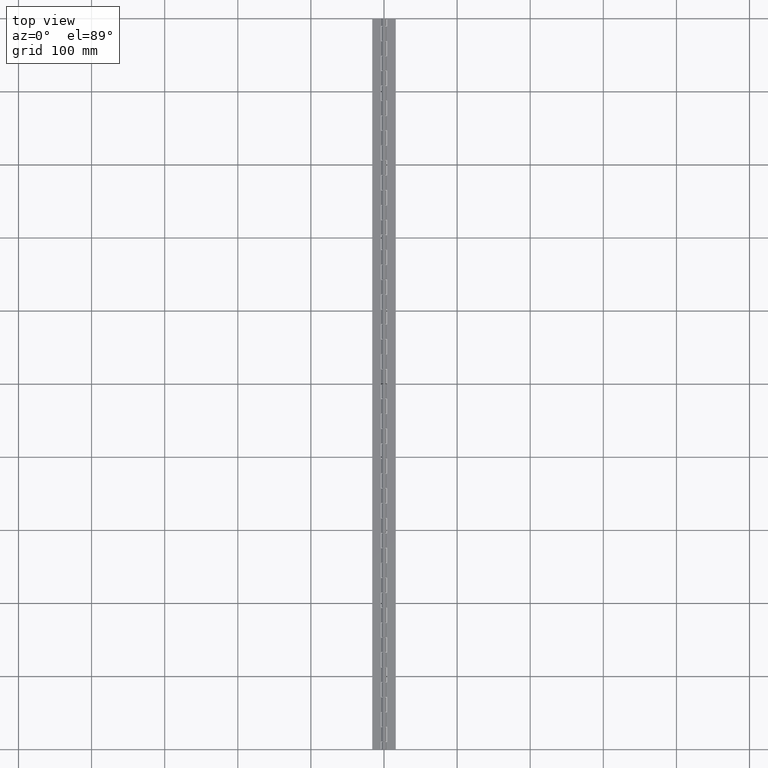
[diagram: clean part render]
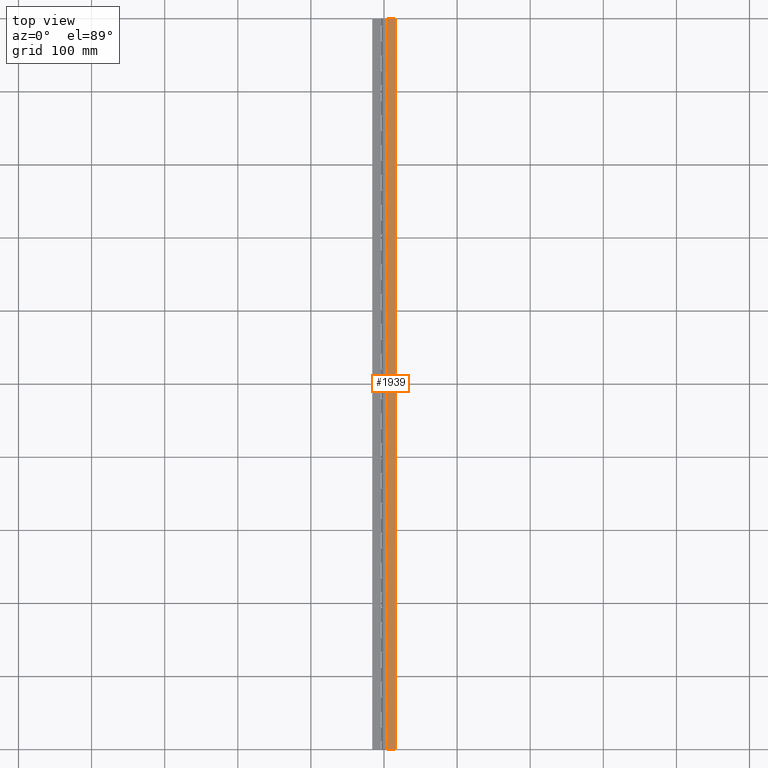
[diagram: same view with one face highlighted and labeled with its STEP entity id]
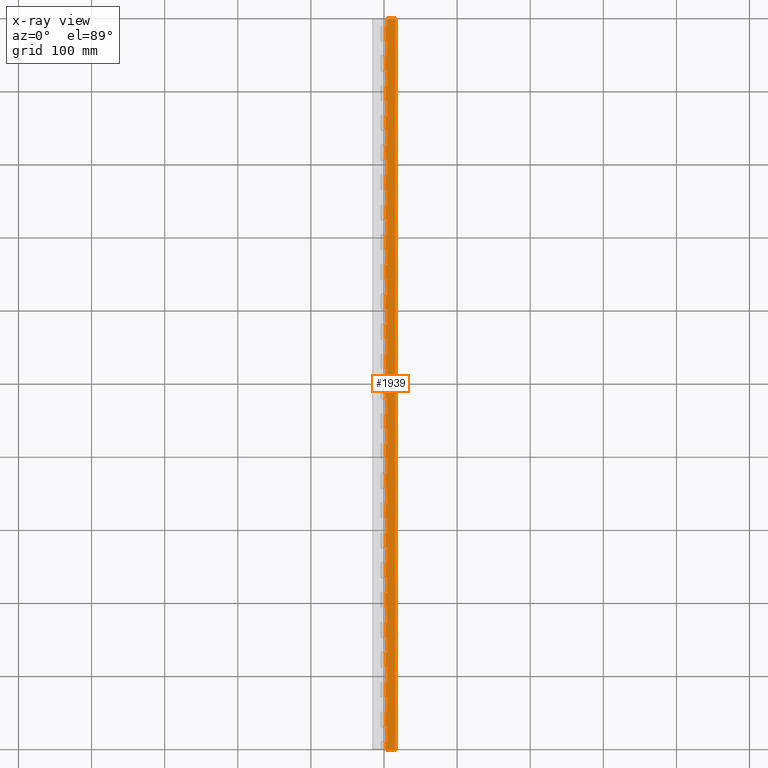
[diagram: x-ray of the same camera — body ghosted, the highlighted face saturated]
A machine part, top view. The second image highlights one B-rep face of the part: STEP entity #1939.
The next image is the same camera in x-ray: the body ghosted, the highlighted face saturated — about 0% of this face is hidden behind the body in this view.
In plain terms, the highlighted planar face has unit normal (0, 0, -1).
Its self-contained STEP definition (entity closure, byte-faithful):
#1308 = EDGE_CURVE ( 'NONE', #1309, #1327, #4344, .T. ) ;
#1309 = VERTEX_POINT ( 'NONE', #4336 ) ;
#1327 = VERTEX_POINT ( 'NONE', #4364 ) ;
#1438 = VERTEX_POINT ( 'NONE', #4599 ) ;
#1440 = EDGE_CURVE ( 'NONE', #1441, #1438, #4598, .T. ) ;
#1441 = VERTEX_POINT ( 'NONE', #4594 ) ;
#1451 = VERTEX_POINT ( 'NONE', #4639 ) ;
#1453 = EDGE_CURVE ( 'NONE', #1454, #1451, #4638, .T. ) ;
#1454 = VERTEX_POINT ( 'NONE', #4634 ) ;
#1483 = EDGE_CURVE ( 'NONE', #1558, #1492, #4702, .T. ) ;
#1492 = VERTEX_POINT ( 'NONE', #4739 ) ;
#1495 = VERTEX_POINT ( 'NONE', #4734 ) ;
#1497 = ORIENTED_EDGE ( 'NONE', *, *, #2075, .T. ) ;
#1498 = VERTEX_POINT ( 'NONE', #4727 ) ;
#1506 = VERTEX_POINT ( 'NONE', #4713 ) ;
#1508 = EDGE_CURVE ( 'NONE', #1509, #1506, #4778, .T. ) ;
#1509 = VERTEX_POINT ( 'NONE', #4774 ) ;
#1516 = VERTEX_POINT ( 'NONE', #4757 ) ;
#1519 = VERTEX_POINT ( 'NONE', #4755 ) ;
#1521 = EDGE_CURVE ( 'NONE', #1522, #1519, #4754, .T. ) ;
#1522 = VERTEX_POINT ( 'NONE', #4750 ) ;
#1533 = VERTEX_POINT ( 'NONE', #4791 ) ;
#1536 = VERTEX_POINT ( 'NONE', #4784 ) ;
#1538 = EDGE_CURVE ( 'NONE', #1539, #1536, #4783, .T. ) ;
#1539 = VERTEX_POINT ( 'NONE', #4779 ) ;
#1549 = VERTEX_POINT ( 'NONE', #4825 ) ;
#1552 = VERTEX_POINT ( 'NONE', #4819 ) ;
#1554 = EDGE_CURVE ( 'NONE', #1552, #1549, #4818, .T. ) ;
#1558 = VERTEX_POINT ( 'NONE', #4813 ) ;
#1569 = VERTEX_POINT ( 'NONE', #4847 ) ;
#1571 = EDGE_CURVE ( 'NONE', #1572, #1569, #4846, .T. ) ;
#1572 = VERTEX_POINT ( 'NONE', #4842 ) ;
#1573 = EDGE_CURVE ( 'NONE', #1574, #1516, #4906, .T. ) ;
#1574 = VERTEX_POINT ( 'NONE', #4902 ) ;
#1585 = VERTEX_POINT ( 'NONE', #4879 ) ;
#1587 = EDGE_CURVE ( 'NONE', #1644, #1585, #4878, .T. ) ;
#1589 = EDGE_CURVE ( 'NONE', #1590, #1533, #4935, .T. ) ;
#1590 = VERTEX_POINT ( 'NONE', #4931 ) ;
#1605 = VERTEX_POINT ( 'NONE', #4965 ) ;
#1607 = EDGE_CURVE ( 'NONE', #1608, #1605, #4964, .T. ) ;
#1608 = VERTEX_POINT ( 'NONE', #4960 ) ;
#1622 = VERTEX_POINT ( 'NONE', #4995 ) ;
#1624 = EDGE_CURVE ( 'NONE', #1625, #1622, #4994, .T. ) ;
#1625 = VERTEX_POINT ( 'NONE', #4990 ) ;
#1639 = VERTEX_POINT ( 'NONE', #5023 ) ;
#1641 = EDGE_CURVE ( 'NONE', #1642, #1639, #5022, .T. ) ;
#1642 = VERTEX_POINT ( 'NONE', #5018 ) ;
#1644 = VERTEX_POINT ( 'NONE', #5017 ) ;
#1654 = EDGE_CURVE ( 'NONE', #1680, #1655, #5009, .T. ) ;
#1655 = VERTEX_POINT ( 'NONE', #5005 ) ;
#1665 = VERTEX_POINT ( 'NONE', #5053 ) ;
#1680 = VERTEX_POINT ( 'NONE', #5084 ) ;
#1712 = EDGE_CURVE ( 'NONE', #1655, #1665, #5161, .T. ) ;
#1724 = EDGE_CURVE ( 'NONE', #1605, #1665, #5141, .T. ) ;
#1872 = VERTEX_POINT ( 'NONE', #5406 ) ;
#1920 = ORIENTED_EDGE ( 'NONE', *, *, #1508, .T. ) ;
#1921 = ORIENTED_EDGE ( 'NONE', *, *, #1922, .T. ) ;
#1922 = EDGE_CURVE ( 'NONE', #1506, #1498, #5455, .T. ) ;
#1923 = ORIENTED_EDGE ( 'NONE', *, *, #1924, .T. ) ;
#1924 = EDGE_CURVE ( 'NONE', #1949, #1925, #5451, .T. ) ;
#1925 = VERTEX_POINT ( 'NONE', #5509 ) ;
#1926 = ORIENTED_EDGE ( 'NONE', *, *, #1927, .T. ) ;
#1927 = EDGE_CURVE ( 'NONE', #1925, #1872, #5508, .T. ) ;
#1928 = ORIENTED_EDGE ( 'NONE', *, *, #1962, .T. ) ;
#1929 = ORIENTED_EDGE ( 'NONE', *, *, #1930, .T. ) ;
#1930 = EDGE_CURVE ( 'NONE', #1960, #1931, #5504, .T. ) ;
#1931 = VERTEX_POINT ( 'NONE', #5500 ) ;
#1932 = ORIENTED_EDGE ( 'NONE', *, *, #1933, .T. ) ;
#1933 = EDGE_CURVE ( 'NONE', #1931, #1934, #5499, .T. ) ;
#1934 = VERTEX_POINT ( 'NONE', #5495 ) ;
#1935 = ORIENTED_EDGE ( 'NONE', *, *, #2002, .T. ) ;
#1939 = ADVANCED_FACE ( 'NONE', ( #5489 ), #5488, .F. ) ;
#1940 = EDGE_LOOP ( 'NONE', ( #1941, #1944, #1946, #1947, #1923, #1926, #1928, #1929, #1932, #1935, #2003, #2004, #2007, #2010, #1920, #1921, #1989, #1992, #1994, #1995, #1998, #2001, #1976, #1977, #1980, #1983, #1985, #1986, #2059, #1965, #1967, #1968, #1972, #2045, #2047, #2048, #2051, #2054, #2056, #2057, #2032, #2035, #2037, #2038, #2041, #2044, #2019, #2020, #2023, #2026, #2028, #2029, #2104, #2107, #2109, #2012, #2015, #2089, #2091, #2092, #2096, #2099, #2101, #1497, #2077, #2080, #2082, #2083, #2086, #2063, #2065, #2066, #2069, #2072, #2074, #2148, #2151, #2154, #2156, #2157, #2060, #2135, #2137, #2138, #2141, #2144, #2146, #2147, #2123, #2126, #2128, #2129, #2133, #2196, #2111, #2112, #2115, #2118, #2120, #2182, #2183, #2184 ) ) ;
#1941 = ORIENTED_EDGE ( 'NONE', *, *, #1942, .T. ) ;
#1942 = EDGE_CURVE ( 'NONE', #1680, #1943, #5483, .T. ) ;
#1943 = VERTEX_POINT ( 'NONE', #5479 ) ;
#1944 = ORIENTED_EDGE ( 'NONE', *, *, #1945, .T. ) ;
#1945 = EDGE_CURVE ( 'NONE', #1943, #1309, #5541, .T. ) ;
#1946 = ORIENTED_EDGE ( 'NONE', *, *, #1308, .T. ) ;
#1947 = ORIENTED_EDGE ( 'NONE', *, *, #1948, .T. ) ;
#1948 = EDGE_CURVE ( 'NONE', #1327, #1949, #5536, .T. ) ;
#1949 = VERTEX_POINT ( 'NONE', #5532 ) ;
#1960 = VERTEX_POINT ( 'NONE', #5514 ) ;
#1962 = EDGE_CURVE ( 'NONE', #1872, #1960, #5573, .T. ) ;
#1963 = EDGE_CURVE ( 'NONE', #1988, #1964, #5569, .T. ) ;
#1964 = VERTEX_POINT ( 'NONE', #5565 ) ;
#1965 = ORIENTED_EDGE ( 'NONE', *, *, #1966, .T. ) ;
#1966 = EDGE_CURVE ( 'NONE', #1964, #1558, #5564, .T. ) ;
#1967 = ORIENTED_EDGE ( 'NONE', *, *, #1483, .T. ) ;
#1968 = ORIENTED_EDGE ( 'NONE', *, *, #1969, .T. ) ;
#1969 = EDGE_CURVE ( 'NONE', #1492, #1970, #5560, .T. ) ;
#1970 = VERTEX_POINT ( 'NONE', #5556 ) ;
#1972 = ORIENTED_EDGE ( 'NONE', *, *, #1973, .T. ) ;
#1973 = EDGE_CURVE ( 'NONE', #1970, #1974, #5555, .T. ) ;
#1974 = VERTEX_POINT ( 'NONE', #5551 ) ;
#1975 = EDGE_CURVE ( 'NONE', #2000, #2430, #5548, .T. ) ;
#1976 = ORIENTED_EDGE ( 'NONE', *, *, #2358, .T. ) ;
#1977 = ORIENTED_EDGE ( 'NONE', *, *, #1978, .T. ) ;
#1978 = EDGE_CURVE ( 'NONE', #2427, #1979, #5544, .T. ) ;
#1979 = VERTEX_POINT ( 'NONE', #5603 ) ;
#1980 = ORIENTED_EDGE ( 'NONE', *, *, #1981, .T. ) ;
#1981 = EDGE_CURVE ( 'NONE', #1979, #1982, #5602, .T. ) ;
#1982 = VERTEX_POINT ( 'NONE', #5598 ) ;
#1983 = ORIENTED_EDGE ( 'NONE', *, *, #1984, .T. ) ;
#1984 = EDGE_CURVE ( 'NONE', #1982, #1552, #5597, .T. ) ;
#1985 = ORIENTED_EDGE ( 'NONE', *, *, #1554, .T. ) ;
#1986 = ORIENTED_EDGE ( 'NONE', *, *, #1987, .T. ) ;
#1987 = EDGE_CURVE ( 'NONE', #1549, #1988, #5593, .T. ) ;
#1988 = VERTEX_POINT ( 'NONE', #5589 ) ;
#1989 = ORIENTED_EDGE ( 'NONE', *, *, #1990, .T. ) ;
#1990 = EDGE_CURVE ( 'NONE', #1498, #1991, #5588, .T. ) ;
#1991 = VERTEX_POINT ( 'NONE', #5584 ) ;
#1992 = ORIENTED_EDGE ( 'NONE', *, *, #1993, .T. ) ;
#1993 = EDGE_CURVE ( 'NONE', #1991, #1441, #5583, .T. ) ;
#1994 = ORIENTED_EDGE ( 'NONE', *, *, #1440, .T. ) ;
#1995 = ORIENTED_EDGE ( 'NONE', *, *, #1996, .T. ) ;
#1996 = EDGE_CURVE ( 'NONE', #1438, #1997, #5579, .T. ) ;
#1997 = VERTEX_POINT ( 'NONE', #5574 ) ;
#1998 = ORIENTED_EDGE ( 'NONE', *, *, #1999, .T. ) ;
#1999 = EDGE_CURVE ( 'NONE', #1997, #2000, #5575, .T. ) ;
#2000 = VERTEX_POINT ( 'NONE', #5631 ) ;
#2001 = ORIENTED_EDGE ( 'NONE', *, *, #1975, .T. ) ;
#2002 = EDGE_CURVE ( 'NONE', #1934, #1454, #5630, .T. ) ;
#2003 = ORIENTED_EDGE ( 'NONE', *, *, #1453, .T. ) ;
#2004 = ORIENTED_EDGE ( 'NONE', *, *, #2005, .T. ) ;
#2005 = EDGE_CURVE ( 'NONE', #1451, #2006, #5626, .T. ) ;
#2006 = VERTEX_POINT ( 'NONE', #5622 ) ;
#2007 = ORIENTED_EDGE ( 'NONE', *, *, #2008, .T. ) ;
#2008 = EDGE_CURVE ( 'NONE', #2006, #2009, #5621, .T. ) ;
#2009 = VERTEX_POINT ( 'NONE', #5617 ) ;
#2010 = ORIENTED_EDGE ( 'NONE', *, *, #2011, .T. ) ;
#2011 = EDGE_CURVE ( 'NONE', #2009, #1509, #5616, .T. ) ;
#2012 = ORIENTED_EDGE ( 'NONE', *, *, #2013, .T. ) ;
#2013 = EDGE_CURVE ( 'NONE', #2282, #2014, #5612, .T. ) ;
#2014 = VERTEX_POINT ( 'NONE', #5608 ) ;
#2015 = ORIENTED_EDGE ( 'NONE', *, *, #2016, .T. ) ;
#2016 = EDGE_CURVE ( 'NONE', #2014, #2017, #5607, .T. ) ;
#2017 = VERTEX_POINT ( 'NONE', #5665 ) ;
#2018 = EDGE_CURVE ( 'NONE', #2043, #2371, #5664, .T. ) ;
#2019 = ORIENTED_EDGE ( 'NONE', *, *, #2374, .T. ) ;
#2020 = ORIENTED_EDGE ( 'NONE', *, *, #2021, .T. ) ;
#2021 = EDGE_CURVE ( 'NONE', #2331, #2022, #5660, .T. ) ;
#2022 = VERTEX_POINT ( 'NONE', #5656 ) ;
#2023 = ORIENTED_EDGE ( 'NONE', *, *, #2024, .T. ) ;
#2024 = EDGE_CURVE ( 'NONE', #2022, #2025, #5655, .T. ) ;
#2025 = VERTEX_POINT ( 'NONE', #5651 ) ;
#2026 = ORIENTED_EDGE ( 'NONE', *, *, #2027, .T. ) ;
#2027 = EDGE_CURVE ( 'NONE', #2025, #2290, #5650, .T. ) ;
#2028 = ORIENTED_EDGE ( 'NONE', *, *, #2291, .T. ) ;
#2029 = ORIENTED_EDGE ( 'NONE', *, *, #2102, .T. ) ;
#2030 = VERTEX_POINT ( 'NONE', #5646 ) ;
#2031 = VERTEX_POINT ( 'NONE', #5645 ) ;
#2032 = ORIENTED_EDGE ( 'NONE', *, *, #2033, .T. ) ;
#2033 = EDGE_CURVE ( 'NONE', #2031, #2034, #5644, .T. ) ;
#2034 = VERTEX_POINT ( 'NONE', #5640 ) ;
#2035 = ORIENTED_EDGE ( 'NONE', *, *, #2036, .T. ) ;
#2036 = EDGE_CURVE ( 'NONE', #2034, #2394, #5638, .T. ) ;
#2037 = ORIENTED_EDGE ( 'NONE', *, *, #2390, .T. ) ;
#2038 = ORIENTED_EDGE ( 'NONE', *, *, #2039, .T. ) ;
#2039 = EDGE_CURVE ( 'NONE', #2320, #2040, #5639, .T. ) ;
#2040 = VERTEX_POINT ( 'NONE', #5693 ) ;
#2041 = ORIENTED_EDGE ( 'NONE', *, *, #2042, .T. ) ;
#2042 = EDGE_CURVE ( 'NONE', #2040, #2043, #5692, .T. ) ;
#2043 = VERTEX_POINT ( 'NONE', #5688 ) ;
#2044 = ORIENTED_EDGE ( 'NONE', *, *, #2018, .T. ) ;
#2045 = ORIENTED_EDGE ( 'NONE', *, *, #2046, .T. ) ;
#2046 = EDGE_CURVE ( 'NONE', #1974, #2345, #5687, .T. ) ;
#2047 = ORIENTED_EDGE ( 'NONE', *, *, #2346, .T. ) ;
#2048 = ORIENTED_EDGE ( 'NONE', *, *, #2049, .T. ) ;
#2049 = EDGE_CURVE ( 'NONE', #1495, #2050, #5683, .T. ) ;
#2050 = VERTEX_POINT ( 'NONE', #5679 ) ;
#2051 = ORIENTED_EDGE ( 'NONE', *, *, #2052, .T. ) ;
#2052 = EDGE_CURVE ( 'NONE', #2050, #2053, #5678, .T. ) ;
#2053 = VERTEX_POINT ( 'NONE', #5674 ) ;
#2054 = ORIENTED_EDGE ( 'NONE', *, *, #2055, .T. ) ;
#2055 = EDGE_CURVE ( 'NONE', #2053, #2327, #5673, .T. ) ;
#2056 = ORIENTED_EDGE ( 'NONE', *, *, #2326, .T. ) ;
#2057 = ORIENTED_EDGE ( 'NONE', *, *, #2058, .T. ) ;
#2058 = EDGE_CURVE ( 'NONE', #2337, #2031, #5669, .T. ) ;
#2059 = ORIENTED_EDGE ( 'NONE', *, *, #1963, .T. ) ;
#2060 = ORIENTED_EDGE ( 'NONE', *, *, #2061, .T. ) ;
#2061 = EDGE_CURVE ( 'NONE', #10031, #2062, #5726, .T. ) ;
#2062 = VERTEX_POINT ( 'NONE', #5722 ) ;
#2063 = ORIENTED_EDGE ( 'NONE', *, *, #2064, .T. ) ;
#2064 = EDGE_CURVE ( 'NONE', #2088, #1522, #5721, .T. ) ;
#2065 = ORIENTED_EDGE ( 'NONE', *, *, #1521, .T. ) ;
#2066 = ORIENTED_EDGE ( 'NONE', *, *, #2067, .T. ) ;
#2067 = EDGE_CURVE ( 'NONE', #1519, #2068, #5717, .T. ) ;
#2068 = VERTEX_POINT ( 'NONE', #5713 ) ;
#2069 = ORIENTED_EDGE ( 'NONE', *, *, #2070, .T. ) ;
#2070 = EDGE_CURVE ( 'NONE', #2068, #2071, #5712, .T. ) ;
#2071 = VERTEX_POINT ( 'NONE', #5708 ) ;
#2072 = ORIENTED_EDGE ( 'NONE', *, *, #2073, .T. ) ;
#2073 = EDGE_CURVE ( 'NONE', #2071, #1590, #5707, .T. ) ;
#2074 = ORIENTED_EDGE ( 'NONE', *, *, #1589, .T. ) ;
#2075 = EDGE_CURVE ( 'NONE', #2354, #2076, #5703, .T. ) ;
#2076 = VERTEX_POINT ( 'NONE', #5699 ) ;
#2077 = ORIENTED_EDGE ( 'NONE', *, *, #2078, .T. ) ;
#2078 = EDGE_CURVE ( 'NONE', #2076, #2079, #5698, .T. ) ;
#2079 = VERTEX_POINT ( 'NONE', #5755 ) ;
#2080 = ORIENTED_EDGE ( 'NONE', *, *, #2081, .T. ) ;
#2081 = EDGE_CURVE ( 'NONE', #2079, #1539, #5754, .T. ) ;
#2082 = ORIENTED_EDGE ( 'NONE', *, *, #1538, .T. ) ;
#2083 = ORIENTED_EDGE ( 'NONE', *, *, #2084, .T. ) ;
#2084 = EDGE_CURVE ( 'NONE', #1536, #2085, #5750, .T. ) ;
#2085 = VERTEX_POINT ( 'NONE', #5746 ) ;
#2086 = ORIENTED_EDGE ( 'NONE', *, *, #2087, .T. ) ;
#2087 = EDGE_CURVE ( 'NONE', #2085, #2088, #5745, .T. ) ;
#2088 = VERTEX_POINT ( 'NONE', #5741 ) ;
#2089 = ORIENTED_EDGE ( 'NONE', *, *, #2090, .T. ) ;
#2090 = EDGE_CURVE ( 'NONE', #2017, #2380, #5740, .T. ) ;
#2091 = ORIENTED_EDGE ( 'NONE', *, *, #2384, .T. ) ;
#2092 = ORIENTED_EDGE ( 'NONE', *, *, #2093, .T. ) ;
#2093 = EDGE_CURVE ( 'NONE', #2328, #2095, #5736, .T. ) ;
#2095 = VERTEX_POINT ( 'NONE', #5732 ) ;
#2096 = ORIENTED_EDGE ( 'NONE', *, *, #2097, .T. ) ;
#2097 = EDGE_CURVE ( 'NONE', #2095, #2098, #5731, .T. ) ;
#2098 = VERTEX_POINT ( 'NONE', #5727 ) ;
#2099 = ORIENTED_EDGE ( 'NONE', *, *, #2100, .T. ) ;
#2100 = EDGE_CURVE ( 'NONE', #2098, #2352, #5787, .T. ) ;
#2101 = ORIENTED_EDGE ( 'NONE', *, *, #2351, .T. ) ;
#2102 = EDGE_CURVE ( 'NONE', #2297, #2030, #5783, .T. ) ;
#2104 = ORIENTED_EDGE ( 'NONE', *, *, #2105, .T. ) ;
#2105 = EDGE_CURVE ( 'NONE', #2030, #2106, #5775, .T. ) ;
#2106 = VERTEX_POINT ( 'NONE', #5771 ) ;
#2107 = ORIENTED_EDGE ( 'NONE', *, *, #2108, .T. ) ;
#2108 = EDGE_CURVE ( 'NONE', #2106, #2369, #5770, .T. ) ;
#2109 = ORIENTED_EDGE ( 'NONE', *, *, #2368, .T. ) ;
#2110 = EDGE_CURVE ( 'NONE', #2195, #1625, #5766, .T. ) ;
#2111 = ORIENTED_EDGE ( 'NONE', *, *, #1624, .T. ) ;
#2112 = ORIENTED_EDGE ( 'NONE', *, *, #2113, .T. ) ;
#2113 = EDGE_CURVE ( 'NONE', #1622, #2114, #5762, .T. ) ;
#2114 = VERTEX_POINT ( 'NONE', #5758 ) ;
#2115 = ORIENTED_EDGE ( 'NONE', *, *, #2116, .T. ) ;
#2116 = EDGE_CURVE ( 'NONE', #2114, #2117, #5822, .T. ) ;
#2117 = VERTEX_POINT ( 'NONE', #5818 ) ;
#2118 = ORIENTED_EDGE ( 'NONE', *, *, #2119, .T. ) ;
#2119 = EDGE_CURVE ( 'NONE', #2117, #1608, #5817, .T. ) ;
#2120 = ORIENTED_EDGE ( 'NONE', *, *, #1607, .T. ) ;
#2121 = EDGE_CURVE ( 'NONE', #1569, #2122, #5813, .T. ) ;
#2122 = VERTEX_POINT ( 'NONE', #5809 ) ;
#2123 = ORIENTED_EDGE ( 'NONE', *, *, #2124, .T. ) ;
#2124 = EDGE_CURVE ( 'NONE', #2122, #2125, #5807, .T. ) ;
#2125 = VERTEX_POINT ( 'NONE', #5803 ) ;
#2126 = ORIENTED_EDGE ( 'NONE', *, *, #2127, .T. ) ;
#2127 = EDGE_CURVE ( 'NONE', #2125, #1642, #5802, .T. ) ;
#2128 = ORIENTED_EDGE ( 'NONE', *, *, #1641, .T. ) ;
#2129 = ORIENTED_EDGE ( 'NONE', *, *, #2131, .T. ) ;
#2131 = EDGE_CURVE ( 'NONE', #1639, #2132, #5798, .T. ) ;
#2132 = VERTEX_POINT ( 'NONE', #5794 ) ;
#2133 = ORIENTED_EDGE ( 'NONE', *, *, #2134, .T. ) ;
#2134 = EDGE_CURVE ( 'NONE', #2132, #2195, #5792, .T. ) ;
#2135 = ORIENTED_EDGE ( 'NONE', *, *, #2136, .T. ) ;
#2136 = EDGE_CURVE ( 'NONE', #2062, #1644, #5850, .T. ) ;
#2137 = ORIENTED_EDGE ( 'NONE', *, *, #1587, .T. ) ;
#2138 = ORIENTED_EDGE ( 'NONE', *, *, #2139, .T. ) ;
#2139 = EDGE_CURVE ( 'NONE', #1585, #2140, #5846, .T. ) ;
#2140 = VERTEX_POINT ( 'NONE', #5842 ) ;
#2141 = ORIENTED_EDGE ( 'NONE', *, *, #2142, .T. ) ;
#2142 = EDGE_CURVE ( 'NONE', #2140, #2143, #5841, .T. ) ;
#2143 = VERTEX_POINT ( 'NONE', #5837 ) ;
#2144 = ORIENTED_EDGE ( 'NONE', *, *, #2145, .T. ) ;
#2145 = EDGE_CURVE ( 'NONE', #2143, #1572, #5836, .T. ) ;
#2146 = ORIENTED_EDGE ( 'NONE', *, *, #1571, .T. ) ;
#2147 = ORIENTED_EDGE ( 'NONE', *, *, #2121, .T. ) ;
#2148 = ORIENTED_EDGE ( 'NONE', *, *, #2149, .T. ) ;
#2149 = EDGE_CURVE ( 'NONE', #1533, #2150, #5832, .T. ) ;
#2150 = VERTEX_POINT ( 'NONE', #5828 ) ;
#2151 = ORIENTED_EDGE ( 'NONE', *, *, #2152, .T. ) ;
#2152 = EDGE_CURVE ( 'NONE', #2150, #2153, #5827, .T. ) ;
#2153 = VERTEX_POINT ( 'NONE', #5823 ) ;
#2154 = ORIENTED_EDGE ( 'NONE', *, *, #2155, .T. ) ;
#2155 = EDGE_CURVE ( 'NONE', #2153, #1574, #5885, .T. ) ;
#2156 = ORIENTED_EDGE ( 'NONE', *, *, #1573, .T. ) ;
#2157 = ORIENTED_EDGE ( 'NONE', *, *, #2158, .T. ) ;
#2158 = EDGE_CURVE ( 'NONE', #1516, #10031, #5881, .T. ) ;
#2182 = ORIENTED_EDGE ( 'NONE', *, *, #1724, .T. ) ;
#2183 = ORIENTED_EDGE ( 'NONE', *, *, #1712, .F. ) ;
#2184 = ORIENTED_EDGE ( 'NONE', *, *, #1654, .F. ) ;
#2195 = VERTEX_POINT ( 'NONE', #5896 ) ;
#2196 = ORIENTED_EDGE ( 'NONE', *, *, #2110, .T. ) ;
#2282 = VERTEX_POINT ( 'NONE', #6043 ) ;
#2290 = VERTEX_POINT ( 'NONE', #6026 ) ;
#2291 = EDGE_CURVE ( 'NONE', #2290, #2297, #6025, .T. ) ;
#2297 = VERTEX_POINT ( 'NONE', #6075 ) ;
#2320 = VERTEX_POINT ( 'NONE', #6095 ) ;
#2326 = EDGE_CURVE ( 'NONE', #2327, #2337, #6157, .T. ) ;
#2327 = VERTEX_POINT ( 'NONE', #6152 ) ;
#2328 = VERTEX_POINT ( 'NONE', #6151 ) ;
#2331 = VERTEX_POINT ( 'NONE', #6149 ) ;
#2337 = VERTEX_POINT ( 'NONE', #6143 ) ;
#2345 = VERTEX_POINT ( 'NONE', #6127 ) ;
#2346 = EDGE_CURVE ( 'NONE', #2345, #1495, #6188, .T. ) ;
#2351 = EDGE_CURVE ( 'NONE', #2352, #2354, #6175, .T. ) ;
#2352 = VERTEX_POINT ( 'NONE', #6171 ) ;
#2354 = VERTEX_POINT ( 'NONE', #6169 ) ;
#2358 = EDGE_CURVE ( 'NONE', #2430, #2427, #6167, .T. ) ;
#2368 = EDGE_CURVE ( 'NONE', #2369, #2282, #6208, .T. ) ;
#2369 = VERTEX_POINT ( 'NONE', #6204 ) ;
#2371 = VERTEX_POINT ( 'NONE', #6203 ) ;
#2374 = EDGE_CURVE ( 'NONE', #2371, #2331, #6197, .T. ) ;
#2380 = VERTEX_POINT ( 'NONE', #6190 ) ;
#2384 = EDGE_CURVE ( 'NONE', #2380, #2328, #6245, .T. ) ;
#2390 = EDGE_CURVE ( 'NONE', #2394, #2320, #6231, .T. ) ;
#2394 = VERTEX_POINT ( 'NONE', #6221 ) ;
#2427 = VERTEX_POINT ( 'NONE', #6260 ) ;
#2430 = VERTEX_POINT ( 'NONE', #6253 ) ;
#4336 = CARTESIAN_POINT ( 'NONE',  ( 2.872281323134627600, 489.4000000000015700, -1.999999999999877000 ) ) ;
#4337 = DIRECTION ( 'NONE',  ( 0.0000000000000000000, -1.000000000000000000, 0.0000000000000000000 ) ) ;
#4338 = VECTOR ( 'NONE', #4337, 1000.000000000000000 ) ;
#4339 = CARTESIAN_POINT ( 'NONE',  ( 2.872281323134628000, 500.0000000000000000, -1.999999999999877000 ) ) ;
#4344 = LINE ( 'NONE', #4339, #4338 ) ;
#4364 = CARTESIAN_POINT ( 'NONE',  ( 2.872281323134627600, 469.4000000000006600, -1.999999999999877000 ) ) ;
#4594 = CARTESIAN_POINT ( 'NONE',  ( 2.872281323134627600, 326.2000000000009000, -1.999999999999877000 ) ) ;
#4595 = DIRECTION ( 'NONE',  ( 0.0000000000000000000, -1.000000000000000000, 0.0000000000000000000 ) ) ;
#4596 = VECTOR ( 'NONE', #4595, 1000.000000000000000 ) ;
#4597 = CARTESIAN_POINT ( 'NONE',  ( 2.872281323134628000, 500.0000000000000000, -1.999999999999877000 ) ) ;
#4598 = LINE ( 'NONE', #4597, #4596 ) ;
#4599 = CARTESIAN_POINT ( 'NONE',  ( 2.872281323134627600, 306.2000000000006100, -1.999999999999877000 ) ) ;
#4634 = CARTESIAN_POINT ( 'NONE',  ( 2.872281323134627600, 407.8000000000007500, -1.999999999999877000 ) ) ;
#4635 = DIRECTION ( 'NONE',  ( 0.0000000000000000000, -1.000000000000000000, 0.0000000000000000000 ) ) ;
#4636 = VECTOR ( 'NONE', #4635, 1000.000000000000000 ) ;
#4637 = CARTESIAN_POINT ( 'NONE',  ( 2.872281323134628000, 500.0000000000000000, -1.999999999999877000 ) ) ;
#4638 = LINE ( 'NONE', #4637, #4636 ) ;
#4639 = CARTESIAN_POINT ( 'NONE',  ( 2.872281323134627600, 387.8000000000007500, -1.999999999999877000 ) ) ;
#4699 = DIRECTION ( 'NONE',  ( 0.0000000000000000000, -1.000000000000000000, 0.0000000000000000000 ) ) ;
#4700 = VECTOR ( 'NONE', #4699, 1000.000000000000000 ) ;
#4701 = CARTESIAN_POINT ( 'NONE',  ( 2.872281323134628000, 500.0000000000000000, -1.999999999999877000 ) ) ;
#4702 = LINE ( 'NONE', #4701, #4700 ) ;
#4713 = CARTESIAN_POINT ( 'NONE',  ( 2.872281323134627600, 347.0000000000008000, -1.999999999999877000 ) ) ;
#4727 = CARTESIAN_POINT ( 'NONE',  ( 4.000000000119019500, 347.0000000000008000, -1.999999999999877000 ) ) ;
#4734 = CARTESIAN_POINT ( 'NONE',  ( 2.872281323134627600, 143.0000000000006300, -1.999999999999877000 ) ) ;
#4739 = CARTESIAN_POINT ( 'NONE',  ( 2.872281323134627600, 183.8000000000008100, -1.999999999999877000 ) ) ;
#4750 = CARTESIAN_POINT ( 'NONE',  ( 2.872281323134627600, -204.1999999999992800, -1.999999999999877000 ) ) ;
#4751 = DIRECTION ( 'NONE',  ( 0.0000000000000000000, -1.000000000000000000, 0.0000000000000000000 ) ) ;
#4752 = VECTOR ( 'NONE', #4751, 1000.000000000000000 ) ;
#4753 = CARTESIAN_POINT ( 'NONE',  ( 2.872281323134628000, 500.0000000000000000, -1.999999999999877000 ) ) ;
#4754 = LINE ( 'NONE', #4753, #4752 ) ;
#4755 = CARTESIAN_POINT ( 'NONE',  ( 2.872281323134627600, -224.1999999999991600, -1.999999999999877000 ) ) ;
#4757 = CARTESIAN_POINT ( 'NONE',  ( 2.872281323134627600, -305.7999999999991600, -1.999999999999877000 ) ) ;
#4774 = CARTESIAN_POINT ( 'NONE',  ( 2.872281323134627600, 367.0000000000008500, -1.999999999999877000 ) ) ;
#4775 = DIRECTION ( 'NONE',  ( 0.0000000000000000000, -1.000000000000000000, 0.0000000000000000000 ) ) ;
#4776 = VECTOR ( 'NONE', #4775, 1000.000000000000000 ) ;
#4777 = CARTESIAN_POINT ( 'NONE',  ( 2.872281323134628000, 500.0000000000000000, -1.999999999999877000 ) ) ;
#4778 = LINE ( 'NONE', #4777, #4776 ) ;
#4779 = CARTESIAN_POINT ( 'NONE',  ( 2.872281323134627600, -163.3999999999993200, -1.999999999999877000 ) ) ;
#4780 = DIRECTION ( 'NONE',  ( 0.0000000000000000000, -1.000000000000000000, 0.0000000000000000000 ) ) ;
#4781 = VECTOR ( 'NONE', #4780, 1000.000000000000000 ) ;
#4782 = CARTESIAN_POINT ( 'NONE',  ( 2.872281323134628000, 500.0000000000000000, -1.999999999999877000 ) ) ;
#4783 = LINE ( 'NONE', #4782, #4781 ) ;
#4784 = CARTESIAN_POINT ( 'NONE',  ( 2.872281323134627600, -183.3999999999991200, -1.999999999999877000 ) ) ;
#4791 = CARTESIAN_POINT ( 'NONE',  ( 2.872281323134627600, -264.9999999999992600, -1.999999999999877000 ) ) ;
#4813 = CARTESIAN_POINT ( 'NONE',  ( 2.872281323134627600, 203.8000000000008100, -1.999999999999877000 ) ) ;
#4815 = DIRECTION ( 'NONE',  ( 0.0000000000000000000, -1.000000000000000000, 0.0000000000000000000 ) ) ;
#4816 = VECTOR ( 'NONE', #4815, 1000.000000000000000 ) ;
#4817 = CARTESIAN_POINT ( 'NONE',  ( 2.872281323134628000, 500.0000000000000000, -1.999999999999877000 ) ) ;
#4818 = LINE ( 'NONE', #4817, #4816 ) ;
#4819 = CARTESIAN_POINT ( 'NONE',  ( 2.872281323134627600, 244.6000000000007600, -1.999999999999877000 ) ) ;
#4825 = CARTESIAN_POINT ( 'NONE',  ( 2.872281323134627600, 224.6000000000007300, -1.999999999999877000 ) ) ;
#4842 = CARTESIAN_POINT ( 'NONE',  ( 2.872281323134627600, -367.3999999999993000, -1.999999999999877000 ) ) ;
#4843 = DIRECTION ( 'NONE',  ( 0.0000000000000000000, -1.000000000000000000, 0.0000000000000000000 ) ) ;
#4844 = VECTOR ( 'NONE', #4843, 1000.000000000000000 ) ;
#4845 = CARTESIAN_POINT ( 'NONE',  ( 2.872281323134628000, 500.0000000000000000, -1.999999999999877000 ) ) ;
#4846 = LINE ( 'NONE', #4845, #4844 ) ;
#4847 = CARTESIAN_POINT ( 'NONE',  ( 2.872281323134627600, -387.3999999999990700, -1.999999999999877000 ) ) ;
#4875 = DIRECTION ( 'NONE',  ( 0.0000000000000000000, -1.000000000000000000, 0.0000000000000000000 ) ) ;
#4876 = VECTOR ( 'NONE', #4875, 1000.000000000000000 ) ;
#4877 = CARTESIAN_POINT ( 'NONE',  ( 2.872281323134628000, 500.0000000000000000, -1.999999999999877000 ) ) ;
#4878 = LINE ( 'NONE', #4877, #4876 ) ;
#4879 = CARTESIAN_POINT ( 'NONE',  ( 2.872281323134627600, -346.5999999999991100, -1.999999999999877000 ) ) ;
#4902 = CARTESIAN_POINT ( 'NONE',  ( 2.872281323134627600, -285.7999999999992700, -1.999999999999877000 ) ) ;
#4903 = DIRECTION ( 'NONE',  ( 0.0000000000000000000, -1.000000000000000000, 0.0000000000000000000 ) ) ;
#4904 = VECTOR ( 'NONE', #4903, 1000.000000000000000 ) ;
#4905 = CARTESIAN_POINT ( 'NONE',  ( 2.872281323134628000, 500.0000000000000000, -1.999999999999877000 ) ) ;
#4906 = LINE ( 'NONE', #4905, #4904 ) ;
#4931 = CARTESIAN_POINT ( 'NONE',  ( 2.872281323134627600, -244.9999999999992000, -1.999999999999877000 ) ) ;
#4932 = DIRECTION ( 'NONE',  ( 0.0000000000000000000, -1.000000000000000000, 0.0000000000000000000 ) ) ;
#4933 = VECTOR ( 'NONE', #4932, 1000.000000000000000 ) ;
#4934 = CARTESIAN_POINT ( 'NONE',  ( 2.872281323134628000, 500.0000000000000000, -1.999999999999877000 ) ) ;
#4935 = LINE ( 'NONE', #4934, #4933 ) ;
#4960 = CARTESIAN_POINT ( 'NONE',  ( 2.872281323134627600, -489.7999999999994400, -1.999999999999877000 ) ) ;
#4961 = DIRECTION ( 'NONE',  ( 0.0000000000000000000, -1.000000000000000000, 0.0000000000000000000 ) ) ;
#4962 = VECTOR ( 'NONE', #4961, 1000.000000000000000 ) ;
#4963 = CARTESIAN_POINT ( 'NONE',  ( 2.872281323134628000, 500.0000000000000000, -1.999999999999877000 ) ) ;
#4964 = LINE ( 'NONE', #4963, #4962 ) ;
#4965 = CARTESIAN_POINT ( 'NONE',  ( 2.872281323134628000, -500.0000000000000000, -1.999999999999877000 ) ) ;
#4990 = CARTESIAN_POINT ( 'NONE',  ( 2.872281323134627600, -448.9999999999992600, -1.999999999999877000 ) ) ;
#4991 = DIRECTION ( 'NONE',  ( 0.0000000000000000000, -1.000000000000000000, 0.0000000000000000000 ) ) ;
#4992 = VECTOR ( 'NONE', #4991, 1000.000000000000000 ) ;
#4993 = CARTESIAN_POINT ( 'NONE',  ( 2.872281323134628000, 500.0000000000000000, -1.999999999999877000 ) ) ;
#4994 = LINE ( 'NONE', #4993, #4992 ) ;
#4995 = CARTESIAN_POINT ( 'NONE',  ( 2.872281323134627600, -468.9999999999989800, -1.999999999999877000 ) ) ;
#5005 = CARTESIAN_POINT ( 'NONE',  ( 16.00000000000001400, 500.0000000000000000, -1.999999999999877000 ) ) ;
#5006 = DIRECTION ( 'NONE',  ( 1.000000000000000000, 0.0000000000000000000, 0.0000000000000000000 ) ) ;
#5007 = VECTOR ( 'NONE', #5006, 1000.000000000000000 ) ;
#5008 = CARTESIAN_POINT ( 'NONE',  ( 16.00000000000001400, 500.0000000000000000, -1.999999999999877000 ) ) ;
#5009 = LINE ( 'NONE', #5008, #5007 ) ;
#5017 = CARTESIAN_POINT ( 'NONE',  ( 2.872281323134627600, -326.5999999999993400, -1.999999999999877000 ) ) ;
#5018 = CARTESIAN_POINT ( 'NONE',  ( 2.872281323134627600, -408.1999999999992500, -1.999999999999877000 ) ) ;
#5019 = DIRECTION ( 'NONE',  ( 0.0000000000000000000, -1.000000000000000000, 0.0000000000000000000 ) ) ;
#5020 = VECTOR ( 'NONE', #5019, 1000.000000000000000 ) ;
#5021 = CARTESIAN_POINT ( 'NONE',  ( 2.872281323134628000, 500.0000000000000000, -1.999999999999877000 ) ) ;
#5022 = LINE ( 'NONE', #5021, #5020 ) ;
#5023 = CARTESIAN_POINT ( 'NONE',  ( 2.872281323134627600, -428.1999999999992500, -1.999999999999877000 ) ) ;
#5033 = DIRECTION ( 'NONE',  ( 1.000000000000000000, 0.0000000000000000000, 0.0000000000000000000 ) ) ;
#5034 = VECTOR ( 'NONE', #5033, 1000.000000000000000 ) ;
#5053 = CARTESIAN_POINT ( 'NONE',  ( 16.00000000000001400, -500.0000000000000000, -1.999999999999877000 ) ) ;
#5084 = CARTESIAN_POINT ( 'NONE',  ( 4.000000000120795800, 500.0000000000015300, -1.999999999999877000 ) ) ;
#5138 = DIRECTION ( 'NONE',  ( 1.000000000000000000, 0.0000000000000000000, 0.0000000000000000000 ) ) ;
#5139 = VECTOR ( 'NONE', #5138, 1000.000000000000000 ) ;
#5140 = CARTESIAN_POINT ( 'NONE',  ( 16.00000000000001400, -500.0000000000000000, -1.999999999999877000 ) ) ;
#5141 = LINE ( 'NONE', #5140, #5139 ) ;
#5158 = DIRECTION ( 'NONE',  ( 0.0000000000000000000, -1.000000000000000000, 0.0000000000000000000 ) ) ;
#5159 = VECTOR ( 'NONE', #5158, 1000.000000000000000 ) ;
#5160 = CARTESIAN_POINT ( 'NONE',  ( 16.00000000000001400, 500.0000000000000000, -1.999999999999877000 ) ) ;
#5161 = LINE ( 'NONE', #5160, #5159 ) ;
#5406 = CARTESIAN_POINT ( 'NONE',  ( 2.872281323134627600, 448.6000000000007000, -1.999999999999877000 ) ) ;
#5448 = DIRECTION ( 'NONE',  ( 0.0000000000000000000, -1.000000000000000000, 0.0000000000000000000 ) ) ;
#5449 = VECTOR ( 'NONE', #5448, 1000.000000000000000 ) ;
#5450 = CARTESIAN_POINT ( 'NONE',  ( 4.000000000120351700, 500.0000000000000000, -1.999999999999877000 ) ) ;
#5451 = LINE ( 'NONE', #5450, #5449 ) ;
#5452 = DIRECTION ( 'NONE',  ( 1.000000000000000000, 0.0000000000000000000, 0.0000000000000000000 ) ) ;
#5453 = VECTOR ( 'NONE', #5452, 1000.000000000000000 ) ;
#5454 = CARTESIAN_POINT ( 'NONE',  ( 16.00000000000001400, 347.0000000000008000, -1.999999999999877000 ) ) ;
#5455 = LINE ( 'NONE', #5454, #5453 ) ;
#5479 = CARTESIAN_POINT ( 'NONE',  ( 4.000000000120795800, 489.4000000000015700, -1.999999999999877000 ) ) ;
#5480 = DIRECTION ( 'NONE',  ( 0.0000000000000000000, -1.000000000000000000, 0.0000000000000000000 ) ) ;
#5481 = VECTOR ( 'NONE', #5480, 1000.000000000000000 ) ;
#5482 = CARTESIAN_POINT ( 'NONE',  ( 4.000000000120795800, 500.0000000000000000, -1.999999999999877000 ) ) ;
#5483 = LINE ( 'NONE', #5482, #5481 ) ;
#5484 = DIRECTION ( 'NONE',  ( -1.000000000000000000, 0.0000000000000000000, 0.0000000000000000000 ) ) ;
#5485 = DIRECTION ( 'NONE',  ( 0.0000000000000000000, 0.0000000000000000000, -1.000000000000000000 ) ) ;
#5486 = CARTESIAN_POINT ( 'NONE',  ( 16.00000000000001400, 500.0000000000000000, -1.999999999999877000 ) ) ;
#5487 = AXIS2_PLACEMENT_3D ( 'NONE', #5486, #5485, #5484 ) ;
#5488 = PLANE ( 'NONE',  #5487 ) ;
#5489 = FACE_OUTER_BOUND ( 'NONE', #1940, .T. ) ;
#5495 = CARTESIAN_POINT ( 'NONE',  ( 4.000000000119907600, 407.8000000000007500, -1.999999999999877000 ) ) ;
#5496 = DIRECTION ( 'NONE',  ( 0.0000000000000000000, -1.000000000000000000, 0.0000000000000000000 ) ) ;
#5497 = VECTOR ( 'NONE', #5496, 1000.000000000000000 ) ;
#5498 = CARTESIAN_POINT ( 'NONE',  ( 4.000000000119907600, 500.0000000000000000, -1.999999999999877000 ) ) ;
#5499 = LINE ( 'NONE', #5498, #5497 ) ;
#5500 = CARTESIAN_POINT ( 'NONE',  ( 4.000000000119907600, 428.6000000000007000, -1.999999999999877000 ) ) ;
#5501 = DIRECTION ( 'NONE',  ( 1.000000000000000000, 0.0000000000000000000, 0.0000000000000000000 ) ) ;
#5502 = VECTOR ( 'NONE', #5501, 1000.000000000000000 ) ;
#5503 = CARTESIAN_POINT ( 'NONE',  ( 16.00000000000001400, 428.6000000000007000, -1.999999999999877000 ) ) ;
#5504 = LINE ( 'NONE', #5503, #5502 ) ;
#5505 = DIRECTION ( 'NONE',  ( -1.000000000000000000, 0.0000000000000000000, 0.0000000000000000000 ) ) ;
#5506 = VECTOR ( 'NONE', #5505, 1000.000000000000000 ) ;
#5507 = CARTESIAN_POINT ( 'NONE',  ( 16.00000000000001400, 448.6000000000007000, -1.999999999999877000 ) ) ;
#5508 = LINE ( 'NONE', #5507, #5506 ) ;
#5509 = CARTESIAN_POINT ( 'NONE',  ( 4.000000000120351700, 448.6000000000007600, -1.999999999999877000 ) ) ;
#5514 = CARTESIAN_POINT ( 'NONE',  ( 2.872281323134627600, 428.6000000000007000, -1.999999999999877000 ) ) ;
#5532 = CARTESIAN_POINT ( 'NONE',  ( 4.000000000120351700, 469.4000000000006600, -1.999999999999877000 ) ) ;
#5533 = DIRECTION ( 'NONE',  ( 1.000000000000000000, 0.0000000000000000000, 0.0000000000000000000 ) ) ;
#5534 = VECTOR ( 'NONE', #5533, 1000.000000000000000 ) ;
#5535 = CARTESIAN_POINT ( 'NONE',  ( 16.00000000000001400, 469.4000000000006600, -1.999999999999877000 ) ) ;
#5536 = LINE ( 'NONE', #5535, #5534 ) ;
#5538 = DIRECTION ( 'NONE',  ( -1.000000000000000000, 0.0000000000000000000, 0.0000000000000000000 ) ) ;
#5539 = VECTOR ( 'NONE', #5538, 1000.000000000000000 ) ;
#5540 = CARTESIAN_POINT ( 'NONE',  ( 16.00000000000001400, 489.4000000000015700, -1.999999999999877000 ) ) ;
#5541 = LINE ( 'NONE', #5540, #5539 ) ;
#5543 = CARTESIAN_POINT ( 'NONE',  ( 16.00000000000001400, 265.4000000000007200, -1.999999999999877000 ) ) ;
#5544 = LINE ( 'NONE', #5543, #5034 ) ;
#5545 = DIRECTION ( 'NONE',  ( -1.000000000000000000, 0.0000000000000000000, 0.0000000000000000000 ) ) ;
#5546 = VECTOR ( 'NONE', #5545, 1000.000000000000000 ) ;
#5547 = CARTESIAN_POINT ( 'NONE',  ( 16.00000000000001400, 285.4000000000007200, -1.999999999999877000 ) ) ;
#5548 = LINE ( 'NONE', #5547, #5546 ) ;
#5551 = CARTESIAN_POINT ( 'NONE',  ( 4.000000000117465100, 163.0000000000008500, -1.999999999999877000 ) ) ;
#5552 = DIRECTION ( 'NONE',  ( 0.0000000000000000000, -1.000000000000000000, 0.0000000000000000000 ) ) ;
#5553 = VECTOR ( 'NONE', #5552, 1000.000000000000000 ) ;
#5554 = CARTESIAN_POINT ( 'NONE',  ( 4.000000000117465100, 500.0000000000000000, -1.999999999999877000 ) ) ;
#5555 = LINE ( 'NONE', #5554, #5553 ) ;
#5556 = CARTESIAN_POINT ( 'NONE',  ( 4.000000000117465100, 183.8000000000008100, -1.999999999999877000 ) ) ;
#5557 = DIRECTION ( 'NONE',  ( 1.000000000000000000, 0.0000000000000000000, 0.0000000000000000000 ) ) ;
#5558 = VECTOR ( 'NONE', #5557, 1000.000000000000000 ) ;
#5559 = CARTESIAN_POINT ( 'NONE',  ( 16.00000000000001400, 183.8000000000008100, -1.999999999999877000 ) ) ;
#5560 = LINE ( 'NONE', #5559, #5558 ) ;
#5561 = DIRECTION ( 'NONE',  ( -1.000000000000000000, 0.0000000000000000000, 0.0000000000000000000 ) ) ;
#5562 = VECTOR ( 'NONE', #5561, 1000.000000000000000 ) ;
#5563 = CARTESIAN_POINT ( 'NONE',  ( 16.00000000000001400, 203.8000000000008100, -1.999999999999877000 ) ) ;
#5564 = LINE ( 'NONE', #5563, #5562 ) ;
#5565 = CARTESIAN_POINT ( 'NONE',  ( 4.000000000117909200, 203.8000000000008100, -1.999999999999877000 ) ) ;
#5566 = DIRECTION ( 'NONE',  ( 0.0000000000000000000, -1.000000000000000000, 0.0000000000000000000 ) ) ;
#5567 = VECTOR ( 'NONE', #5566, 1000.000000000000000 ) ;
#5568 = CARTESIAN_POINT ( 'NONE',  ( 4.000000000117909200, 500.0000000000000000, -1.999999999999877000 ) ) ;
#5569 = LINE ( 'NONE', #5568, #5567 ) ;
#5570 = DIRECTION ( 'NONE',  ( 0.0000000000000000000, -1.000000000000000000, 0.0000000000000000000 ) ) ;
#5571 = VECTOR ( 'NONE', #5570, 1000.000000000000000 ) ;
#5572 = CARTESIAN_POINT ( 'NONE',  ( 2.872281323134628000, 500.0000000000000000, -1.999999999999877000 ) ) ;
#5573 = LINE ( 'NONE', #5572, #5571 ) ;
#5574 = CARTESIAN_POINT ( 'NONE',  ( 4.000000000118797400, 306.2000000000006100, -1.999999999999877000 ) ) ;
#5575 = LINE ( 'NONE', #5634, #5633 ) ;
#5576 = DIRECTION ( 'NONE',  ( 1.000000000000000000, 0.0000000000000000000, 0.0000000000000000000 ) ) ;
#5577 = VECTOR ( 'NONE', #5576, 1000.000000000000000 ) ;
#5578 = CARTESIAN_POINT ( 'NONE',  ( 16.00000000000001400, 306.2000000000006100, -1.999999999999877000 ) ) ;
#5579 = LINE ( 'NONE', #5578, #5577 ) ;
#5580 = DIRECTION ( 'NONE',  ( -1.000000000000000000, 0.0000000000000000000, 0.0000000000000000000 ) ) ;
#5581 = VECTOR ( 'NONE', #5580, 1000.000000000000000 ) ;
#5582 = CARTESIAN_POINT ( 'NONE',  ( 16.00000000000001400, 326.2000000000009000, -1.999999999999877000 ) ) ;
#5583 = LINE ( 'NONE', #5582, #5581 ) ;
#5584 = CARTESIAN_POINT ( 'NONE',  ( 4.000000000119019500, 326.2000000000009000, -1.999999999999877000 ) ) ;
#5585 = DIRECTION ( 'NONE',  ( 0.0000000000000000000, -1.000000000000000000, 0.0000000000000000000 ) ) ;
#5586 = VECTOR ( 'NONE', #5585, 1000.000000000000000 ) ;
#5587 = CARTESIAN_POINT ( 'NONE',  ( 4.000000000119019500, 500.0000000000000000, -1.999999999999877000 ) ) ;
#5588 = LINE ( 'NONE', #5587, #5586 ) ;
#5589 = CARTESIAN_POINT ( 'NONE',  ( 4.000000000117909200, 224.6000000000007300, -1.999999999999877000 ) ) ;
#5590 = DIRECTION ( 'NONE',  ( 1.000000000000000000, 0.0000000000000000000, 0.0000000000000000000 ) ) ;
#5591 = VECTOR ( 'NONE', #5590, 1000.000000000000000 ) ;
#5592 = CARTESIAN_POINT ( 'NONE',  ( 16.00000000000001400, 224.6000000000007300, -1.999999999999877000 ) ) ;
#5593 = LINE ( 'NONE', #5592, #5591 ) ;
#5594 = DIRECTION ( 'NONE',  ( -1.000000000000000000, 0.0000000000000000000, 0.0000000000000000000 ) ) ;
#5595 = VECTOR ( 'NONE', #5594, 1000.000000000000000 ) ;
#5596 = CARTESIAN_POINT ( 'NONE',  ( 16.00000000000001400, 244.6000000000007600, -1.999999999999877000 ) ) ;
#5597 = LINE ( 'NONE', #5596, #5595 ) ;
#5598 = CARTESIAN_POINT ( 'NONE',  ( 4.000000000118353300, 244.6000000000007600, -1.999999999999877000 ) ) ;
#5599 = DIRECTION ( 'NONE',  ( 0.0000000000000000000, -1.000000000000000000, 0.0000000000000000000 ) ) ;
#5600 = VECTOR ( 'NONE', #5599, 1000.000000000000000 ) ;
#5601 = CARTESIAN_POINT ( 'NONE',  ( 4.000000000118353300, 500.0000000000000000, -1.999999999999877000 ) ) ;
#5602 = LINE ( 'NONE', #5601, #5600 ) ;
#5603 = CARTESIAN_POINT ( 'NONE',  ( 4.000000000118353300, 265.4000000000007200, -1.999999999999877000 ) ) ;
#5604 = DIRECTION ( 'NONE',  ( 0.0000000000000000000, -1.000000000000000000, 0.0000000000000000000 ) ) ;
#5605 = VECTOR ( 'NONE', #5604, 1000.000000000000000 ) ;
#5606 = CARTESIAN_POINT ( 'NONE',  ( 4.000000000115022700, 500.0000000000000000, -1.999999999999877000 ) ) ;
#5607 = LINE ( 'NONE', #5606, #5605 ) ;
#5608 = CARTESIAN_POINT ( 'NONE',  ( 4.000000000115022700, -60.99999999999905500, -1.999999999999877000 ) ) ;
#5609 = DIRECTION ( 'NONE',  ( 1.000000000000000000, 0.0000000000000000000, 0.0000000000000000000 ) ) ;
#5610 = VECTOR ( 'NONE', #5609, 1000.000000000000000 ) ;
#5611 = CARTESIAN_POINT ( 'NONE',  ( 16.00000000000001400, -60.99999999999905500, -1.999999999999877000 ) ) ;
#5612 = LINE ( 'NONE', #5611, #5610 ) ;
#5613 = DIRECTION ( 'NONE',  ( -1.000000000000000000, 0.0000000000000000000, 0.0000000000000000000 ) ) ;
#5614 = VECTOR ( 'NONE', #5613, 1000.000000000000000 ) ;
#5615 = CARTESIAN_POINT ( 'NONE',  ( 16.00000000000001400, 367.0000000000008500, -1.999999999999877000 ) ) ;
#5616 = LINE ( 'NONE', #5615, #5614 ) ;
#5617 = CARTESIAN_POINT ( 'NONE',  ( 4.000000000119463600, 367.0000000000008500, -1.999999999999877000 ) ) ;
#5618 = DIRECTION ( 'NONE',  ( 0.0000000000000000000, -1.000000000000000000, 0.0000000000000000000 ) ) ;
#5619 = VECTOR ( 'NONE', #5618, 1000.000000000000000 ) ;
#5620 = CARTESIAN_POINT ( 'NONE',  ( 4.000000000119463600, 500.0000000000000000, -1.999999999999877000 ) ) ;
#5621 = LINE ( 'NONE', #5620, #5619 ) ;
#5622 = CARTESIAN_POINT ( 'NONE',  ( 4.000000000119463600, 387.8000000000007500, -1.999999999999877000 ) ) ;
#5623 = DIRECTION ( 'NONE',  ( 1.000000000000000000, 0.0000000000000000000, 0.0000000000000000000 ) ) ;
#5624 = VECTOR ( 'NONE', #5623, 1000.000000000000000 ) ;
#5625 = CARTESIAN_POINT ( 'NONE',  ( 16.00000000000001400, 387.8000000000007500, -1.999999999999877000 ) ) ;
#5626 = LINE ( 'NONE', #5625, #5624 ) ;
#5627 = DIRECTION ( 'NONE',  ( -1.000000000000000000, 0.0000000000000000000, 0.0000000000000000000 ) ) ;
#5628 = VECTOR ( 'NONE', #5627, 1000.000000000000000 ) ;
#5629 = CARTESIAN_POINT ( 'NONE',  ( 16.00000000000001400, 407.8000000000007500, -1.999999999999877000 ) ) ;
#5630 = LINE ( 'NONE', #5629, #5628 ) ;
#5631 = CARTESIAN_POINT ( 'NONE',  ( 4.000000000118797400, 285.4000000000007200, -1.999999999999877000 ) ) ;
#5632 = DIRECTION ( 'NONE',  ( 0.0000000000000000000, -1.000000000000000000, 0.0000000000000000000 ) ) ;
#5633 = VECTOR ( 'NONE', #5632, 1000.000000000000000 ) ;
#5634 = CARTESIAN_POINT ( 'NONE',  ( 4.000000000118797400, 500.0000000000000000, -1.999999999999877000 ) ) ;
#5635 = DIRECTION ( 'NONE',  ( -1.000000000000000000, 0.0000000000000000000, 0.0000000000000000000 ) ) ;
#5636 = VECTOR ( 'NONE', #5635, 1000.000000000000000 ) ;
#5637 = CARTESIAN_POINT ( 'NONE',  ( 16.00000000000001400, 81.40000000000074500, -1.999999999999877000 ) ) ;
#5638 = LINE ( 'NONE', #5637, #5636 ) ;
#5639 = LINE ( 'NONE', #5696, #5695 ) ;
#5640 = CARTESIAN_POINT ( 'NONE',  ( 4.000000000116577000, 81.40000000000074500, -1.999999999999877000 ) ) ;
#5641 = DIRECTION ( 'NONE',  ( 0.0000000000000000000, -1.000000000000000000, 0.0000000000000000000 ) ) ;
#5642 = VECTOR ( 'NONE', #5641, 1000.000000000000000 ) ;
#5643 = CARTESIAN_POINT ( 'NONE',  ( 4.000000000116577000, 500.0000000000000000, -1.999999999999877000 ) ) ;
#5644 = LINE ( 'NONE', #5643, #5642 ) ;
#5645 = CARTESIAN_POINT ( 'NONE',  ( 4.000000000116577000, 102.2000000000006800, -1.999999999999877000 ) ) ;
#5646 = CARTESIAN_POINT ( 'NONE',  ( 4.000000000115466700, -20.19999999999932800, -1.999999999999877000 ) ) ;
#5647 = DIRECTION ( 'NONE',  ( -1.000000000000000000, 0.0000000000000000000, 0.0000000000000000000 ) ) ;
#5648 = VECTOR ( 'NONE', #5647, 1000.000000000000000 ) ;
#5649 = CARTESIAN_POINT ( 'NONE',  ( 16.00000000000001400, -0.1999999999997559300, -1.999999999999877000 ) ) ;
#5650 = LINE ( 'NONE', #5649, #5648 ) ;
#5651 = CARTESIAN_POINT ( 'NONE',  ( 4.000000000115910800, -0.1999999999997559300, -1.999999999999877000 ) ) ;
#5652 = DIRECTION ( 'NONE',  ( 0.0000000000000000000, -1.000000000000000000, 0.0000000000000000000 ) ) ;
#5653 = VECTOR ( 'NONE', #5652, 1000.000000000000000 ) ;
#5654 = CARTESIAN_POINT ( 'NONE',  ( 4.000000000115910800, 500.0000000000000000, -1.999999999999877000 ) ) ;
#5655 = LINE ( 'NONE', #5654, #5653 ) ;
#5656 = CARTESIAN_POINT ( 'NONE',  ( 4.000000000115910800, 20.60000000000045300, -1.999999999999877000 ) ) ;
#5657 = DIRECTION ( 'NONE',  ( 1.000000000000000000, 0.0000000000000000000, 0.0000000000000000000 ) ) ;
#5658 = VECTOR ( 'NONE', #5657, 1000.000000000000000 ) ;
#5659 = CARTESIAN_POINT ( 'NONE',  ( 16.00000000000001400, 20.60000000000045300, -1.999999999999877000 ) ) ;
#5660 = LINE ( 'NONE', #5659, #5658 ) ;
#5661 = DIRECTION ( 'NONE',  ( -1.000000000000000000, 0.0000000000000000000, 0.0000000000000000000 ) ) ;
#5662 = VECTOR ( 'NONE', #5661, 1000.000000000000000 ) ;
#5663 = CARTESIAN_POINT ( 'NONE',  ( 16.00000000000001400, 40.60000000000080400, -1.999999999999877000 ) ) ;
#5664 = LINE ( 'NONE', #5663, #5662 ) ;
#5665 = CARTESIAN_POINT ( 'NONE',  ( 4.000000000115022700, -81.79999999999925800, -1.999999999999877000 ) ) ;
#5666 = DIRECTION ( 'NONE',  ( 1.000000000000000000, 0.0000000000000000000, 0.0000000000000000000 ) ) ;
#5667 = VECTOR ( 'NONE', #5666, 1000.000000000000000 ) ;
#5668 = CARTESIAN_POINT ( 'NONE',  ( 16.00000000000001400, 102.2000000000006800, -1.999999999999877000 ) ) ;
#5669 = LINE ( 'NONE', #5668, #5667 ) ;
#5670 = DIRECTION ( 'NONE',  ( -1.000000000000000000, 0.0000000000000000000, 0.0000000000000000000 ) ) ;
#5671 = VECTOR ( 'NONE', #5670, 1000.000000000000000 ) ;
#5672 = CARTESIAN_POINT ( 'NONE',  ( 16.00000000000001400, 122.2000000000007000, -1.999999999999877000 ) ) ;
#5673 = LINE ( 'NONE', #5672, #5671 ) ;
#5674 = CARTESIAN_POINT ( 'NONE',  ( 4.000000000117021100, 122.2000000000007000, -1.999999999999877000 ) ) ;
#5675 = DIRECTION ( 'NONE',  ( 0.0000000000000000000, -1.000000000000000000, 0.0000000000000000000 ) ) ;
#5676 = VECTOR ( 'NONE', #5675, 1000.000000000000000 ) ;
#5677 = CARTESIAN_POINT ( 'NONE',  ( 4.000000000117021100, 500.0000000000000000, -1.999999999999877000 ) ) ;
#5678 = LINE ( 'NONE', #5677, #5676 ) ;
#5679 = CARTESIAN_POINT ( 'NONE',  ( 4.000000000117021100, 143.0000000000006300, -1.999999999999877000 ) ) ;
#5680 = DIRECTION ( 'NONE',  ( 1.000000000000000000, 0.0000000000000000000, 0.0000000000000000000 ) ) ;
#5681 = VECTOR ( 'NONE', #5680, 1000.000000000000000 ) ;
#5682 = CARTESIAN_POINT ( 'NONE',  ( 16.00000000000001400, 143.0000000000006300, -1.999999999999877000 ) ) ;
#5683 = LINE ( 'NONE', #5682, #5681 ) ;
#5684 = DIRECTION ( 'NONE',  ( -1.000000000000000000, 0.0000000000000000000, 0.0000000000000000000 ) ) ;
#5685 = VECTOR ( 'NONE', #5684, 1000.000000000000000 ) ;
#5686 = CARTESIAN_POINT ( 'NONE',  ( 16.00000000000001400, 163.0000000000008500, -1.999999999999877000 ) ) ;
#5687 = LINE ( 'NONE', #5686, #5685 ) ;
#5688 = CARTESIAN_POINT ( 'NONE',  ( 4.000000000116132900, 40.60000000000080400, -1.999999999999877000 ) ) ;
#5689 = DIRECTION ( 'NONE',  ( 0.0000000000000000000, -1.000000000000000000, 0.0000000000000000000 ) ) ;
#5690 = VECTOR ( 'NONE', #5689, 1000.000000000000000 ) ;
#5691 = CARTESIAN_POINT ( 'NONE',  ( 4.000000000116132900, 500.0000000000000000, -1.999999999999877000 ) ) ;
#5692 = LINE ( 'NONE', #5691, #5690 ) ;
#5693 = CARTESIAN_POINT ( 'NONE',  ( 4.000000000116132900, 61.40000000000073000, -1.999999999999877000 ) ) ;
#5694 = DIRECTION ( 'NONE',  ( 1.000000000000000000, 0.0000000000000000000, 0.0000000000000000000 ) ) ;
#5695 = VECTOR ( 'NONE', #5694, 1000.000000000000000 ) ;
#5696 = CARTESIAN_POINT ( 'NONE',  ( 16.00000000000001400, 61.40000000000073000, -1.999999999999877000 ) ) ;
#5697 = CARTESIAN_POINT ( 'NONE',  ( 4.000000000113912400, 500.0000000000000000, -1.999999999999877000 ) ) ;
#5698 = LINE ( 'NONE', #5697, #5757 ) ;
#5699 = CARTESIAN_POINT ( 'NONE',  ( 4.000000000113912400, -142.5999999999991700, -1.999999999999877000 ) ) ;
#5700 = DIRECTION ( 'NONE',  ( 1.000000000000000000, 0.0000000000000000000, 0.0000000000000000000 ) ) ;
#5701 = VECTOR ( 'NONE', #5700, 1000.000000000000000 ) ;
#5702 = CARTESIAN_POINT ( 'NONE',  ( 16.00000000000001400, -142.5999999999991700, -1.999999999999877000 ) ) ;
#5703 = LINE ( 'NONE', #5702, #5701 ) ;
#5704 = DIRECTION ( 'NONE',  ( -1.000000000000000000, 0.0000000000000000000, 0.0000000000000000000 ) ) ;
#5705 = VECTOR ( 'NONE', #5704, 1000.000000000000000 ) ;
#5706 = CARTESIAN_POINT ( 'NONE',  ( 16.00000000000001400, -244.9999999999992000, -1.999999999999877000 ) ) ;
#5707 = LINE ( 'NONE', #5706, #5705 ) ;
#5708 = CARTESIAN_POINT ( 'NONE',  ( 4.000000000113246300, -244.9999999999992000, -1.999999999999877000 ) ) ;
#5709 = DIRECTION ( 'NONE',  ( 0.0000000000000000000, -1.000000000000000000, 0.0000000000000000000 ) ) ;
#5710 = VECTOR ( 'NONE', #5709, 1000.000000000000000 ) ;
#5711 = CARTESIAN_POINT ( 'NONE',  ( 4.000000000113246300, 500.0000000000000000, -1.999999999999877000 ) ) ;
#5712 = LINE ( 'NONE', #5711, #5710 ) ;
#5713 = CARTESIAN_POINT ( 'NONE',  ( 4.000000000113246300, -224.1999999999991600, -1.999999999999877000 ) ) ;
#5714 = DIRECTION ( 'NONE',  ( 1.000000000000000000, 0.0000000000000000000, 0.0000000000000000000 ) ) ;
#5715 = VECTOR ( 'NONE', #5714, 1000.000000000000000 ) ;
#5716 = CARTESIAN_POINT ( 'NONE',  ( 16.00000000000001400, -224.1999999999991600, -1.999999999999877000 ) ) ;
#5717 = LINE ( 'NONE', #5716, #5715 ) ;
#5718 = DIRECTION ( 'NONE',  ( -1.000000000000000000, 0.0000000000000000000, 0.0000000000000000000 ) ) ;
#5719 = VECTOR ( 'NONE', #5718, 1000.000000000000000 ) ;
#5720 = CARTESIAN_POINT ( 'NONE',  ( 16.00000000000001400, -204.1999999999992800, -1.999999999999877000 ) ) ;
#5721 = LINE ( 'NONE', #5720, #5719 ) ;
#5722 = CARTESIAN_POINT ( 'NONE',  ( 4.000000000112358100, -326.5999999999992800, -1.999999999999877000 ) ) ;
#5723 = DIRECTION ( 'NONE',  ( 0.0000000000000000000, -1.000000000000000000, 0.0000000000000000000 ) ) ;
#5724 = VECTOR ( 'NONE', #5723, 1000.000000000000000 ) ;
#5725 = CARTESIAN_POINT ( 'NONE',  ( 4.000000000112358100, 500.0000000000000000, -1.999999999999877000 ) ) ;
#5726 = LINE ( 'NONE', #5725, #5724 ) ;
#5727 = CARTESIAN_POINT ( 'NONE',  ( 4.000000000114356500, -122.5999999999993300, -1.999999999999877000 ) ) ;
#5728 = DIRECTION ( 'NONE',  ( 0.0000000000000000000, -1.000000000000000000, 0.0000000000000000000 ) ) ;
#5729 = VECTOR ( 'NONE', #5728, 1000.000000000000000 ) ;
#5730 = CARTESIAN_POINT ( 'NONE',  ( 4.000000000114356500, 500.0000000000000000, -1.999999999999877000 ) ) ;
#5731 = LINE ( 'NONE', #5730, #5729 ) ;
#5732 = CARTESIAN_POINT ( 'NONE',  ( 4.000000000114356500, -101.7999999999992300, -1.999999999999877000 ) ) ;
#5733 = DIRECTION ( 'NONE',  ( 1.000000000000000000, 0.0000000000000000000, 0.0000000000000000000 ) ) ;
#5734 = VECTOR ( 'NONE', #5733, 1000.000000000000000 ) ;
#5735 = CARTESIAN_POINT ( 'NONE',  ( 16.00000000000001400, -101.7999999999992300, -1.999999999999877000 ) ) ;
#5736 = LINE ( 'NONE', #5735, #5734 ) ;
#5737 = DIRECTION ( 'NONE',  ( -1.000000000000000000, 0.0000000000000000000, 0.0000000000000000000 ) ) ;
#5738 = VECTOR ( 'NONE', #5737, 1000.000000000000000 ) ;
#5739 = CARTESIAN_POINT ( 'NONE',  ( 16.00000000000001400, -81.79999999999920100, -1.999999999999877000 ) ) ;
#5740 = LINE ( 'NONE', #5739, #5738 ) ;
#5741 = CARTESIAN_POINT ( 'NONE',  ( 4.000000000113690400, -204.1999999999993300, -1.999999999999877000 ) ) ;
#5742 = DIRECTION ( 'NONE',  ( 0.0000000000000000000, -1.000000000000000000, 0.0000000000000000000 ) ) ;
#5743 = VECTOR ( 'NONE', #5742, 1000.000000000000000 ) ;
#5744 = CARTESIAN_POINT ( 'NONE',  ( 4.000000000113690400, 500.0000000000000000, -1.999999999999877000 ) ) ;
#5745 = LINE ( 'NONE', #5744, #5743 ) ;
#5746 = CARTESIAN_POINT ( 'NONE',  ( 4.000000000113690400, -183.3999999999991200, -1.999999999999877000 ) ) ;
#5747 = DIRECTION ( 'NONE',  ( 1.000000000000000000, 0.0000000000000000000, 0.0000000000000000000 ) ) ;
#5748 = VECTOR ( 'NONE', #5747, 1000.000000000000000 ) ;
#5749 = CARTESIAN_POINT ( 'NONE',  ( 16.00000000000001400, -183.3999999999991200, -1.999999999999877000 ) ) ;
#5750 = LINE ( 'NONE', #5749, #5748 ) ;
#5751 = DIRECTION ( 'NONE',  ( -1.000000000000000000, 0.0000000000000000000, 0.0000000000000000000 ) ) ;
#5752 = VECTOR ( 'NONE', #5751, 1000.000000000000000 ) ;
#5753 = CARTESIAN_POINT ( 'NONE',  ( 16.00000000000001400, -163.3999999999993200, -1.999999999999877000 ) ) ;
#5754 = LINE ( 'NONE', #5753, #5752 ) ;
#5755 = CARTESIAN_POINT ( 'NONE',  ( 4.000000000113912400, -163.3999999999992700, -1.999999999999877000 ) ) ;
#5756 = DIRECTION ( 'NONE',  ( 0.0000000000000000000, -1.000000000000000000, 0.0000000000000000000 ) ) ;
#5757 = VECTOR ( 'NONE', #5756, 1000.000000000000000 ) ;
#5758 = CARTESIAN_POINT ( 'NONE',  ( 4.000000000110581800, -468.9999999999989800, -1.999999999999877000 ) ) ;
#5759 = DIRECTION ( 'NONE',  ( 1.000000000000000000, 0.0000000000000000000, 0.0000000000000000000 ) ) ;
#5760 = VECTOR ( 'NONE', #5759, 1000.000000000000000 ) ;
#5761 = CARTESIAN_POINT ( 'NONE',  ( 16.00000000000001400, -468.9999999999989800, -1.999999999999877000 ) ) ;
#5762 = LINE ( 'NONE', #5761, #5760 ) ;
#5763 = DIRECTION ( 'NONE',  ( -1.000000000000000000, 0.0000000000000000000, 0.0000000000000000000 ) ) ;
#5764 = VECTOR ( 'NONE', #5763, 1000.000000000000000 ) ;
#5765 = CARTESIAN_POINT ( 'NONE',  ( 16.00000000000001400, -448.9999999999992600, -1.999999999999877000 ) ) ;
#5766 = LINE ( 'NONE', #5765, #5764 ) ;
#5767 = DIRECTION ( 'NONE',  ( -1.000000000000000000, 0.0000000000000000000, 0.0000000000000000000 ) ) ;
#5768 = VECTOR ( 'NONE', #5767, 1000.000000000000000 ) ;
#5769 = CARTESIAN_POINT ( 'NONE',  ( 16.00000000000001400, -40.99999999999926100, -1.999999999999877000 ) ) ;
#5770 = LINE ( 'NONE', #5769, #5768 ) ;
#5771 = CARTESIAN_POINT ( 'NONE',  ( 4.000000000115466700, -40.99999999999926100, -1.999999999999877000 ) ) ;
#5772 = DIRECTION ( 'NONE',  ( 0.0000000000000000000, -1.000000000000000000, 0.0000000000000000000 ) ) ;
#5773 = VECTOR ( 'NONE', #5772, 1000.000000000000000 ) ;
#5774 = CARTESIAN_POINT ( 'NONE',  ( 4.000000000115466700, 500.0000000000000000, -1.999999999999877000 ) ) ;
#5775 = LINE ( 'NONE', #5774, #5773 ) ;
#5780 = DIRECTION ( 'NONE',  ( 1.000000000000000000, 0.0000000000000000000, 0.0000000000000000000 ) ) ;
#5781 = VECTOR ( 'NONE', #5780, 1000.000000000000000 ) ;
#5782 = CARTESIAN_POINT ( 'NONE',  ( 16.00000000000001400, -20.19999999999932800, -1.999999999999877000 ) ) ;
#5783 = LINE ( 'NONE', #5782, #5781 ) ;
#5784 = DIRECTION ( 'NONE',  ( -1.000000000000000000, 0.0000000000000000000, 0.0000000000000000000 ) ) ;
#5785 = VECTOR ( 'NONE', #5784, 1000.000000000000000 ) ;
#5786 = CARTESIAN_POINT ( 'NONE',  ( 16.00000000000001400, -122.5999999999993700, -1.999999999999877000 ) ) ;
#5787 = LINE ( 'NONE', #5786, #5785 ) ;
#5789 = DIRECTION ( 'NONE',  ( 0.0000000000000000000, -1.000000000000000000, 0.0000000000000000000 ) ) ;
#5790 = VECTOR ( 'NONE', #5789, 1000.000000000000000 ) ;
#5791 = CARTESIAN_POINT ( 'NONE',  ( 4.000000000111025900, 500.0000000000000000, -1.999999999999877000 ) ) ;
#5792 = LINE ( 'NONE', #5791, #5790 ) ;
#5794 = CARTESIAN_POINT ( 'NONE',  ( 4.000000000111025900, -428.1999999999992500, -1.999999999999877000 ) ) ;
#5795 = DIRECTION ( 'NONE',  ( 1.000000000000000000, 0.0000000000000000000, 0.0000000000000000000 ) ) ;
#5796 = VECTOR ( 'NONE', #5795, 1000.000000000000000 ) ;
#5797 = CARTESIAN_POINT ( 'NONE',  ( 16.00000000000001400, -428.1999999999992500, -1.999999999999877000 ) ) ;
#5798 = LINE ( 'NONE', #5797, #5796 ) ;
#5799 = DIRECTION ( 'NONE',  ( -1.000000000000000000, 0.0000000000000000000, 0.0000000000000000000 ) ) ;
#5800 = VECTOR ( 'NONE', #5799, 1000.000000000000000 ) ;
#5801 = CARTESIAN_POINT ( 'NONE',  ( 16.00000000000001400, -408.1999999999992500, -1.999999999999877000 ) ) ;
#5802 = LINE ( 'NONE', #5801, #5800 ) ;
#5803 = CARTESIAN_POINT ( 'NONE',  ( 4.000000000111469900, -408.1999999999992500, -1.999999999999877000 ) ) ;
#5804 = DIRECTION ( 'NONE',  ( 0.0000000000000000000, -1.000000000000000000, 0.0000000000000000000 ) ) ;
#5805 = VECTOR ( 'NONE', #5804, 1000.000000000000000 ) ;
#5806 = CARTESIAN_POINT ( 'NONE',  ( 4.000000000111469900, 500.0000000000000000, -1.999999999999877000 ) ) ;
#5807 = LINE ( 'NONE', #5806, #5805 ) ;
#5809 = CARTESIAN_POINT ( 'NONE',  ( 4.000000000111469900, -387.3999999999990700, -1.999999999999877000 ) ) ;
#5810 = DIRECTION ( 'NONE',  ( 1.000000000000000000, 0.0000000000000000000, 0.0000000000000000000 ) ) ;
#5811 = VECTOR ( 'NONE', #5810, 1000.000000000000000 ) ;
#5812 = CARTESIAN_POINT ( 'NONE',  ( 16.00000000000001400, -387.3999999999990700, -1.999999999999877000 ) ) ;
#5813 = LINE ( 'NONE', #5812, #5811 ) ;
#5814 = DIRECTION ( 'NONE',  ( -1.000000000000000000, 0.0000000000000000000, 0.0000000000000000000 ) ) ;
#5815 = VECTOR ( 'NONE', #5814, 1000.000000000000000 ) ;
#5816 = CARTESIAN_POINT ( 'NONE',  ( 16.00000000000001400, -489.7999999999994400, -1.999999999999877000 ) ) ;
#5817 = LINE ( 'NONE', #5816, #5815 ) ;
#5818 = CARTESIAN_POINT ( 'NONE',  ( 4.000000000110581800, -489.7999999999994400, -1.999999999999877000 ) ) ;
#5819 = DIRECTION ( 'NONE',  ( 0.0000000000000000000, -1.000000000000000000, 0.0000000000000000000 ) ) ;
#5820 = VECTOR ( 'NONE', #5819, 1000.000000000000000 ) ;
#5821 = CARTESIAN_POINT ( 'NONE',  ( 4.000000000110581800, 500.0000000000000000, -1.999999999999877000 ) ) ;
#5822 = LINE ( 'NONE', #5821, #5820 ) ;
#5823 = CARTESIAN_POINT ( 'NONE',  ( 4.000000000112802200, -285.7999999999992700, -1.999999999999877000 ) ) ;
#5824 = DIRECTION ( 'NONE',  ( 0.0000000000000000000, -1.000000000000000000, 0.0000000000000000000 ) ) ;
#5825 = VECTOR ( 'NONE', #5824, 1000.000000000000000 ) ;
#5826 = CARTESIAN_POINT ( 'NONE',  ( 4.000000000112802200, 500.0000000000000000, -1.999999999999877000 ) ) ;
#5827 = LINE ( 'NONE', #5826, #5825 ) ;
#5828 = CARTESIAN_POINT ( 'NONE',  ( 4.000000000112802200, -264.9999999999992600, -1.999999999999877000 ) ) ;
#5829 = DIRECTION ( 'NONE',  ( 1.000000000000000000, 0.0000000000000000000, 0.0000000000000000000 ) ) ;
#5830 = VECTOR ( 'NONE', #5829, 1000.000000000000000 ) ;
#5831 = CARTESIAN_POINT ( 'NONE',  ( 16.00000000000001400, -264.9999999999992600, -1.999999999999877000 ) ) ;
#5832 = LINE ( 'NONE', #5831, #5830 ) ;
#5833 = DIRECTION ( 'NONE',  ( -1.000000000000000000, 0.0000000000000000000, 0.0000000000000000000 ) ) ;
#5834 = VECTOR ( 'NONE', #5833, 1000.000000000000000 ) ;
#5835 = CARTESIAN_POINT ( 'NONE',  ( 16.00000000000001400, -367.3999999999993000, -1.999999999999877000 ) ) ;
#5836 = LINE ( 'NONE', #5835, #5834 ) ;
#5837 = CARTESIAN_POINT ( 'NONE',  ( 4.000000000111914000, -367.3999999999992400, -1.999999999999877000 ) ) ;
#5838 = DIRECTION ( 'NONE',  ( 0.0000000000000000000, -1.000000000000000000, 0.0000000000000000000 ) ) ;
#5839 = VECTOR ( 'NONE', #5838, 1000.000000000000000 ) ;
#5840 = CARTESIAN_POINT ( 'NONE',  ( 4.000000000111914000, 500.0000000000000000, -1.999999999999877000 ) ) ;
#5841 = LINE ( 'NONE', #5840, #5839 ) ;
#5842 = CARTESIAN_POINT ( 'NONE',  ( 4.000000000111914000, -346.5999999999991100, -1.999999999999877000 ) ) ;
#5843 = DIRECTION ( 'NONE',  ( 1.000000000000000000, 0.0000000000000000000, 0.0000000000000000000 ) ) ;
#5844 = VECTOR ( 'NONE', #5843, 1000.000000000000000 ) ;
#5845 = CARTESIAN_POINT ( 'NONE',  ( 16.00000000000001400, -346.5999999999991100, -1.999999999999877000 ) ) ;
#5846 = LINE ( 'NONE', #5845, #5844 ) ;
#5847 = DIRECTION ( 'NONE',  ( -1.000000000000000000, 0.0000000000000000000, 0.0000000000000000000 ) ) ;
#5848 = VECTOR ( 'NONE', #5847, 1000.000000000000000 ) ;
#5849 = CARTESIAN_POINT ( 'NONE',  ( 16.00000000000001400, -326.5999999999993400, -1.999999999999877000 ) ) ;
#5850 = LINE ( 'NONE', #5849, #5848 ) ;
#5878 = DIRECTION ( 'NONE',  ( 1.000000000000000000, 0.0000000000000000000, 0.0000000000000000000 ) ) ;
#5879 = VECTOR ( 'NONE', #5878, 1000.000000000000000 ) ;
#5880 = CARTESIAN_POINT ( 'NONE',  ( 16.00000000000001400, -305.7999999999991600, -1.999999999999877000 ) ) ;
#5881 = LINE ( 'NONE', #5880, #5879 ) ;
#5882 = DIRECTION ( 'NONE',  ( -1.000000000000000000, 0.0000000000000000000, 0.0000000000000000000 ) ) ;
#5883 = VECTOR ( 'NONE', #5882, 1000.000000000000000 ) ;
#5884 = CARTESIAN_POINT ( 'NONE',  ( 16.00000000000001400, -285.7999999999992700, -1.999999999999877000 ) ) ;
#5885 = LINE ( 'NONE', #5884, #5883 ) ;
#5896 = CARTESIAN_POINT ( 'NONE',  ( 4.000000000111025900, -448.9999999999992600, -1.999999999999877000 ) ) ;
#6022 = DIRECTION ( 'NONE',  ( 0.0000000000000000000, -1.000000000000000000, 0.0000000000000000000 ) ) ;
#6023 = VECTOR ( 'NONE', #6022, 1000.000000000000000 ) ;
#6024 = CARTESIAN_POINT ( 'NONE',  ( 2.872281323134628000, 500.0000000000000000, -1.999999999999877000 ) ) ;
#6025 = LINE ( 'NONE', #6024, #6023 ) ;
#6026 = CARTESIAN_POINT ( 'NONE',  ( 2.872281323134627600, -0.1999999999997559300, -1.999999999999877000 ) ) ;
#6043 = CARTESIAN_POINT ( 'NONE',  ( 2.872281323134627600, -60.99999999999905500, -1.999999999999877000 ) ) ;
#6075 = CARTESIAN_POINT ( 'NONE',  ( 2.872281323134627600, -20.19999999999932800, -1.999999999999877000 ) ) ;
#6095 = CARTESIAN_POINT ( 'NONE',  ( 2.872281323134627600, 61.40000000000073000, -1.999999999999877000 ) ) ;
#6127 = CARTESIAN_POINT ( 'NONE',  ( 2.872281323134627600, 163.0000000000008500, -1.999999999999877000 ) ) ;
#6143 = CARTESIAN_POINT ( 'NONE',  ( 2.872281323134627600, 102.2000000000006800, -1.999999999999877000 ) ) ;
#6149 = CARTESIAN_POINT ( 'NONE',  ( 2.872281323134627600, 20.60000000000045300, -1.999999999999877000 ) ) ;
#6151 = CARTESIAN_POINT ( 'NONE',  ( 2.872281323134627600, -101.7999999999992300, -1.999999999999877000 ) ) ;
#6152 = CARTESIAN_POINT ( 'NONE',  ( 2.872281323134627600, 122.2000000000007000, -1.999999999999877000 ) ) ;
#6154 = DIRECTION ( 'NONE',  ( 0.0000000000000000000, -1.000000000000000000, 0.0000000000000000000 ) ) ;
#6155 = VECTOR ( 'NONE', #6154, 1000.000000000000000 ) ;
#6156 = CARTESIAN_POINT ( 'NONE',  ( 2.872281323134628000, 500.0000000000000000, -1.999999999999877000 ) ) ;
#6157 = LINE ( 'NONE', #6156, #6155 ) ;
#6164 = DIRECTION ( 'NONE',  ( 0.0000000000000000000, -1.000000000000000000, 0.0000000000000000000 ) ) ;
#6165 = VECTOR ( 'NONE', #6164, 1000.000000000000000 ) ;
#6166 = CARTESIAN_POINT ( 'NONE',  ( 2.872281323134628000, 500.0000000000000000, -1.999999999999877000 ) ) ;
#6167 = LINE ( 'NONE', #6166, #6165 ) ;
#6169 = CARTESIAN_POINT ( 'NONE',  ( 2.872281323134627600, -142.5999999999991700, -1.999999999999877000 ) ) ;
#6171 = CARTESIAN_POINT ( 'NONE',  ( 2.872281323134627600, -122.5999999999993700, -1.999999999999877000 ) ) ;
#6172 = DIRECTION ( 'NONE',  ( 0.0000000000000000000, -1.000000000000000000, 0.0000000000000000000 ) ) ;
#6173 = VECTOR ( 'NONE', #6172, 1000.000000000000000 ) ;
#6174 = CARTESIAN_POINT ( 'NONE',  ( 2.872281323134628000, 500.0000000000000000, -1.999999999999877000 ) ) ;
#6175 = LINE ( 'NONE', #6174, #6173 ) ;
#6185 = DIRECTION ( 'NONE',  ( 0.0000000000000000000, -1.000000000000000000, 0.0000000000000000000 ) ) ;
#6186 = VECTOR ( 'NONE', #6185, 1000.000000000000000 ) ;
#6187 = CARTESIAN_POINT ( 'NONE',  ( 2.872281323134628000, 500.0000000000000000, -1.999999999999877000 ) ) ;
#6188 = LINE ( 'NONE', #6187, #6186 ) ;
#6190 = CARTESIAN_POINT ( 'NONE',  ( 2.872281323134627600, -81.79999999999920100, -1.999999999999877000 ) ) ;
#6194 = DIRECTION ( 'NONE',  ( 0.0000000000000000000, -1.000000000000000000, 0.0000000000000000000 ) ) ;
#6195 = VECTOR ( 'NONE', #6194, 1000.000000000000000 ) ;
#6196 = CARTESIAN_POINT ( 'NONE',  ( 2.872281323134628000, 500.0000000000000000, -1.999999999999877000 ) ) ;
#6197 = LINE ( 'NONE', #6196, #6195 ) ;
#6203 = CARTESIAN_POINT ( 'NONE',  ( 2.872281323134627600, 40.60000000000080400, -1.999999999999877000 ) ) ;
#6204 = CARTESIAN_POINT ( 'NONE',  ( 2.872281323134627600, -40.99999999999926100, -1.999999999999877000 ) ) ;
#6205 = DIRECTION ( 'NONE',  ( 0.0000000000000000000, -1.000000000000000000, 0.0000000000000000000 ) ) ;
#6206 = VECTOR ( 'NONE', #6205, 1000.000000000000000 ) ;
#6207 = CARTESIAN_POINT ( 'NONE',  ( 2.872281323134628000, 500.0000000000000000, -1.999999999999877000 ) ) ;
#6208 = LINE ( 'NONE', #6207, #6206 ) ;
#6221 = CARTESIAN_POINT ( 'NONE',  ( 2.872281323134627600, 81.40000000000074500, -1.999999999999877000 ) ) ;
#6228 = DIRECTION ( 'NONE',  ( 0.0000000000000000000, -1.000000000000000000, 0.0000000000000000000 ) ) ;
#6229 = VECTOR ( 'NONE', #6228, 1000.000000000000000 ) ;
#6230 = CARTESIAN_POINT ( 'NONE',  ( 2.872281323134628000, 500.0000000000000000, -1.999999999999877000 ) ) ;
#6231 = LINE ( 'NONE', #6230, #6229 ) ;
#6242 = DIRECTION ( 'NONE',  ( 0.0000000000000000000, -1.000000000000000000, 0.0000000000000000000 ) ) ;
#6243 = VECTOR ( 'NONE', #6242, 1000.000000000000000 ) ;
#6244 = CARTESIAN_POINT ( 'NONE',  ( 2.872281323134628000, 500.0000000000000000, -1.999999999999877000 ) ) ;
#6245 = LINE ( 'NONE', #6244, #6243 ) ;
#6253 = CARTESIAN_POINT ( 'NONE',  ( 2.872281323134627600, 285.4000000000007200, -1.999999999999877000 ) ) ;
#6260 = CARTESIAN_POINT ( 'NONE',  ( 2.872281323134627600, 265.4000000000007200, -1.999999999999877000 ) ) ;
#7280 = CARTESIAN_POINT ( 'NONE',  ( 4.000000000112358100, -305.7999999999991600, -1.999999999999877000 ) ) ;
#10031 = VERTEX_POINT ( 'NONE', #7280 ) ;